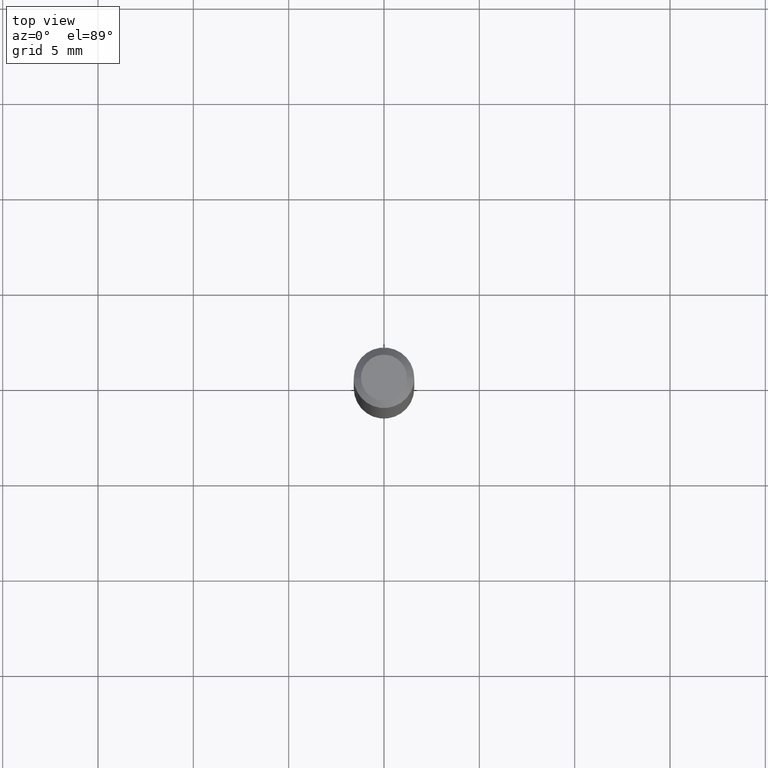
[diagram: clean part render]
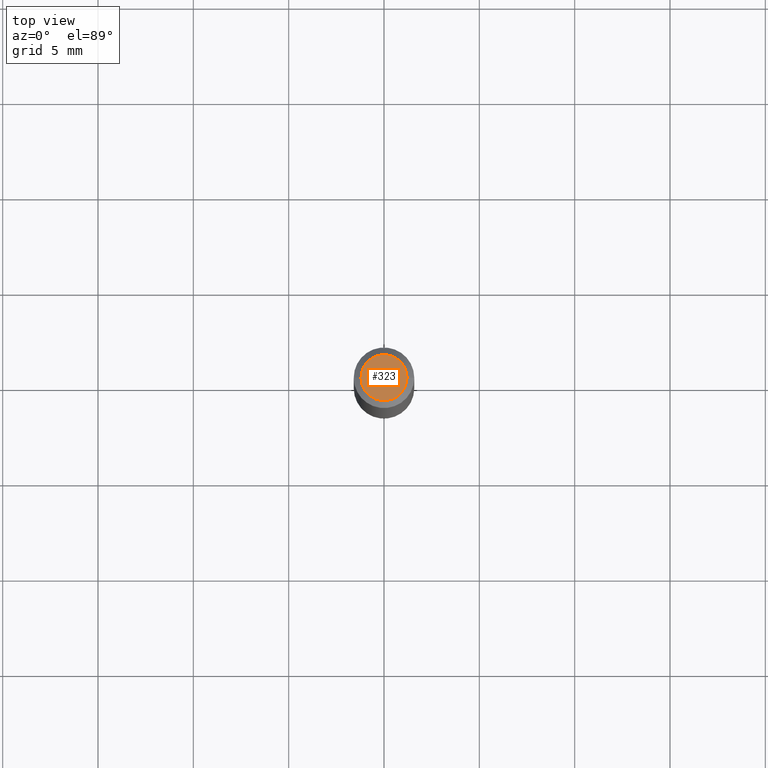
[diagram: same view with one face highlighted and labeled with its STEP entity id]
A machine part, top view. The second image highlights one B-rep face of the part: STEP entity #323.
In plain terms, the highlighted planar face has unit normal (0, -0, -1).
Its self-contained STEP definition (entity closure, byte-faithful):
#15 = CARTESIAN_POINT ( 'NONE',  ( -0.04749999999999999362, 3.578768372314221846E-16, 6.443424916547796954E-16 ) ) ;
#46 = DIRECTION ( 'NONE',  ( 1.000000000000000000, -6.982962677686267499E-15, 4.852736867747366768E-29 ) ) ;
#66 = ORIENTED_EDGE ( 'NONE', *, *, #178, .T. ) ;
#75 = FACE_OUTER_BOUND ( 'NONE', #149, .T. ) ;
#80 = DIRECTION ( 'NONE',  ( -1.000000000000000000, 6.982962677686265922E-15, -4.876176775795935793E-29 ) ) ;
#87 = DIRECTION ( 'NONE',  ( 1.000000000000000000, -6.982962677686267499E-15, 4.852736867747366768E-29 ) ) ;
#113 = VERTEX_POINT ( 'NONE', #195 ) ;
#129 = CARTESIAN_POINT ( 'NONE',  ( -1.575719463841376315E-44, 2.249709785436367094E-30, 6.443424916547820620E-16 ) ) ;
#131 = VERTEX_POINT ( 'NONE', #15 ) ;
#149 = EDGE_LOOP ( 'NONE', ( #458, #66 ) ) ;
#176 = CIRCLE ( 'NONE', #250, 0.04749999999999999362 ) ;
#178 = EDGE_CURVE ( 'NONE', #113, #131, #378, .T. ) ;
#190 = DIRECTION ( 'NONE',  ( 2.438088387897960049E-29, -3.491481338843145188E-15, -1.000000000000000000 ) ) ;
#195 = CARTESIAN_POINT ( 'NONE',  ( 0.04749999999999999362, -4.035134999187566790E-16, 6.443424916547846258E-16 ) ) ;
#237 = EDGE_CURVE ( 'NONE', #131, #113, #176, .T. ) ;
#244 = CARTESIAN_POINT ( 'NONE',  ( 3.316907271900976096E-16, 0.04749999999999999362, 1.563258822323416346E-16 ) ) ;
#250 = AXIS2_PLACEMENT_3D ( 'NONE', #129, #400, #46 ) ;
#323 = ADVANCED_FACE ( 'NONE', ( #75 ), #423, .F. ) ;
#336 = DIRECTION ( 'NONE',  ( -2.445468806185136597E-29, 3.491481338843145583E-15, 1.000000000000000000 ) ) ;
#373 = AXIS2_PLACEMENT_3D ( 'NONE', #437, #336, #87 ) ;
#378 = CIRCLE ( 'NONE', #373, 0.04749999999999999362 ) ;
#400 = DIRECTION ( 'NONE',  ( -2.445468806185136597E-29, 3.491481338843145583E-15, 1.000000000000000000 ) ) ;
#423 = PLANE ( 'NONE',  #444 ) ;
#437 = CARTESIAN_POINT ( 'NONE',  ( -1.575719463841376315E-44, 2.249709785436367094E-30, 6.443424916547820620E-16 ) ) ;
#444 = AXIS2_PLACEMENT_3D ( 'NONE', #244, #190, #80 ) ;
#458 = ORIENTED_EDGE ( 'NONE', *, *, #237, .T. ) ;